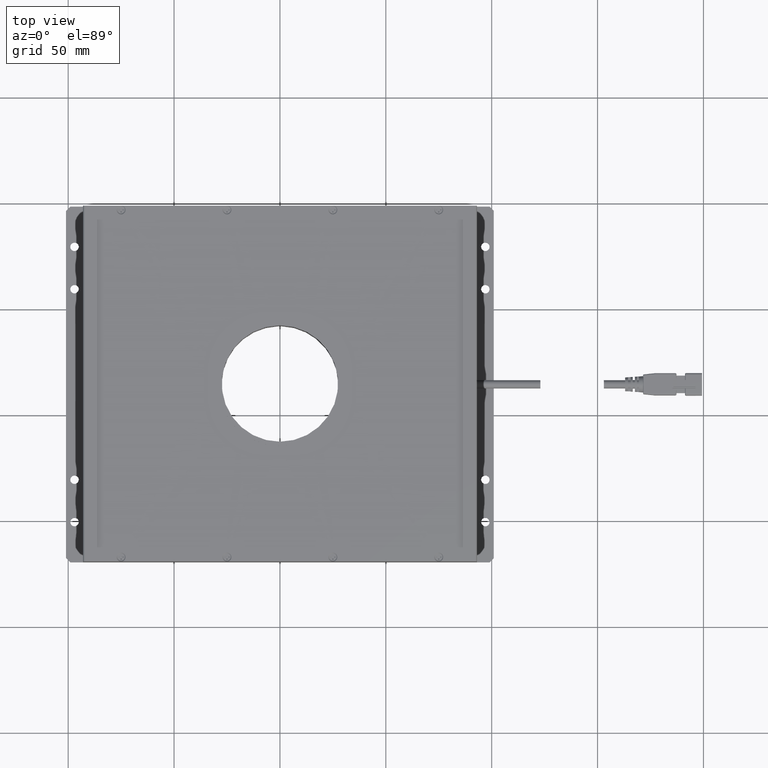
[diagram: clean part render]
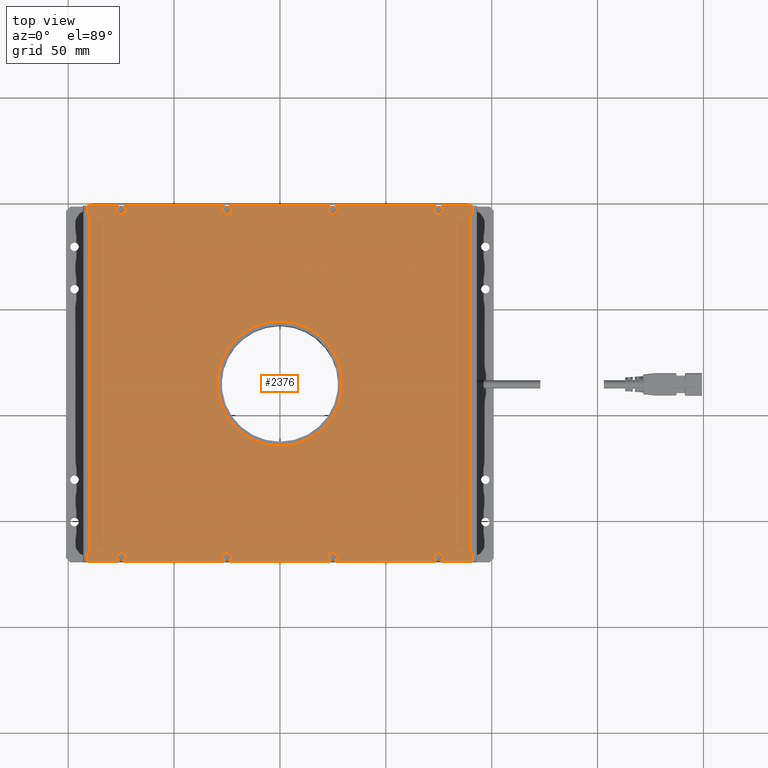
[diagram: same view with one face highlighted and labeled with its STEP entity id]
A machine part, top view. The second image highlights one B-rep face of the part: STEP entity #2376.
In plain terms, the highlighted planar face has unit normal (0, -0, 1).
Its self-contained STEP definition (entity closure, byte-faithful):
#2376=ADVANCED_FACE('NONE',(#5753,#5754),#5755,.T.);
#5753=FACE_BOUND('',#10055,.T.);
#5754=FACE_OUTER_BOUND('',#10056,.T.);
#5755=PLANE('',#10057);
#10055=EDGE_LOOP('',(#18229));
#10056=EDGE_LOOP('',(#18230,#18231,#18232,#18233,#18234,#18235,#18236,#18237,#18238,#18239,#18240,#18241,#18242,#18243,#18244,#18245,#18246,#18247,#18248,#18249));
#10057=AXIS2_PLACEMENT_3D('',#18250,#18251,#18252);
#18229=ORIENTED_EDGE('',*,*,#23698,.T.);
#18230=ORIENTED_EDGE('',*,*,#22360,.F.);
#18231=ORIENTED_EDGE('',*,*,#23916,.T.);
#18232=ORIENTED_EDGE('',*,*,#22358,.F.);
#18233=ORIENTED_EDGE('',*,*,#23917,.T.);
#18234=ORIENTED_EDGE('',*,*,#22356,.F.);
#18235=ORIENTED_EDGE('',*,*,#22362,.T.);
#18236=ORIENTED_EDGE('',*,*,#22354,.F.);
#18237=ORIENTED_EDGE('',*,*,#23875,.T.);
#18238=ORIENTED_EDGE('',*,*,#22352,.F.);
#18239=ORIENTED_EDGE('',*,*,#23807,.T.);
#18240=ORIENTED_EDGE('',*,*,#22145,.T.);
#18241=ORIENTED_EDGE('',*,*,#23918,.T.);
#18242=ORIENTED_EDGE('',*,*,#22143,.T.);
#18243=ORIENTED_EDGE('',*,*,#22420,.T.);
#18244=ORIENTED_EDGE('',*,*,#22141,.T.);
#18245=ORIENTED_EDGE('',*,*,#22147,.T.);
#18246=ORIENTED_EDGE('',*,*,#22139,.T.);
#18247=ORIENTED_EDGE('',*,*,#23877,.T.);
#18248=ORIENTED_EDGE('',*,*,#22137,.T.);
#18249=ORIENTED_EDGE('',*,*,#22268,.T.);
#18250=CARTESIAN_POINT('',(0.0,0.0146249999999999,0.014575));
#18251=DIRECTION('',(0.0,-3.49148336110938E-15,1.0));
#18252=DIRECTION('',(1.0,0.0,0.0));
#22137=EDGE_CURVE('NONE',#24658,#24656,#24659,.T.);
#22139=EDGE_CURVE('NONE',#24662,#24660,#24663,.T.);
#22141=EDGE_CURVE('NONE',#24666,#24664,#24667,.T.);
#22143=EDGE_CURVE('NONE',#24670,#24668,#24671,.T.);
#22145=EDGE_CURVE('NONE',#24652,#24672,#24674,.T.);
#22147=EDGE_CURVE('NONE',#24664,#24662,#24676,.T.);
#22268=EDGE_CURVE('5:3127',#24656,#24894,#24896,.T.);
#22352=EDGE_CURVE('NONE',#25032,#25034,#25035,.T.);
#22354=EDGE_CURVE('NONE',#25036,#25038,#25039,.T.);
#22356=EDGE_CURVE('NONE',#25040,#25042,#25043,.T.);
#22358=EDGE_CURVE('NONE',#25044,#25046,#25047,.T.);
#22360=EDGE_CURVE('NONE',#25048,#24894,#25050,.T.);
#22362=EDGE_CURVE('NONE',#25040,#25038,#25052,.T.);
#22420=EDGE_CURVE('NONE',#24668,#24666,#25154,.T.);
#23698=EDGE_CURVE('NONE',#27063,#27063,#27064,.T.);
#23807=EDGE_CURVE('5:3130',#25032,#24652,#27227,.T.);
#23875=EDGE_CURVE('NONE',#25036,#25034,#27303,.T.);
#23877=EDGE_CURVE('NONE',#24660,#24658,#27305,.T.);
#23916=EDGE_CURVE('NONE',#25048,#25046,#27349,.T.);
#23917=EDGE_CURVE('NONE',#25044,#25042,#27350,.T.);
#23918=EDGE_CURVE('NONE',#24672,#24670,#27351,.T.);
#24652=VERTEX_POINT('',#28318);
#24656=VERTEX_POINT('NONE',#28324);
#24658=VERTEX_POINT('NONE',#28327);
#24659=LINE('',#28328,#28329);
#24660=VERTEX_POINT('NONE',#28330);
#24662=VERTEX_POINT('NONE',#28337);
#24663=LINE('',#28338,#28339);
#24664=VERTEX_POINT('NONE',#28340);
#24666=VERTEX_POINT('NONE',#28347);
#24667=LINE('',#28348,#28349);
#24668=VERTEX_POINT('NONE',#28350);
#24670=VERTEX_POINT('NONE',#28357);
#24671=LINE('',#28358,#28359);
#24672=VERTEX_POINT('NONE',#28360);
#24674=LINE('',#28367,#28368);
#24676=CIRCLE('',#28370,0.00209999997049862);
#24894=VERTEX_POINT('',#28668);
#24896=LINE('',#28671,#28672);
#25032=VERTEX_POINT('NONE',#28890);
#25034=VERTEX_POINT('NONE',#28893);
#25035=LINE('',#28894,#28895);
#25036=VERTEX_POINT('NONE',#28896);
#25038=VERTEX_POINT('NONE',#28903);
#25039=LINE('',#28904,#28905);
#25040=VERTEX_POINT('NONE',#28906);
#25042=VERTEX_POINT('NONE',#28913);
#25043=LINE('',#28914,#28915);
#25044=VERTEX_POINT('NONE',#28916);
#25046=VERTEX_POINT('NONE',#28923);
#25047=LINE('',#28924,#28925);
#25048=VERTEX_POINT('NONE',#28926);
#25050=LINE('',#28933,#28934);
#25052=CIRCLE('',#28936,0.00209999997054272);
#25154=CIRCLE('',#29075,0.00209999999805816);
#27063=VERTEX_POINT('',#31775);
#27064=CIRCLE('',#31776,0.0295);
#27227=LINE('',#32005,#32006);
#27303=CIRCLE('',#32142,0.00209999997048621);
#27305=CIRCLE('',#32144,0.00209999997044211);
#27349=CIRCLE('',#32199,0.00209999999804542);
#27350=CIRCLE('',#32200,0.0020999999981591);
#27351=CIRCLE('',#32201,0.00209999999805816);
#28318=CARTESIAN_POINT('',(-0.091,-0.069375,0.0145749999999997));
#28324=CARTESIAN_POINT('',(0.091,-0.069375,0.0145749999999997));
#28327=CARTESIAN_POINT('',(0.0756403123268037,-0.069375,0.0145749999724905));
#28328=CARTESIAN_POINT('',(0.0,-0.069375,0.0145749999999997));
#28329=VECTOR('',#33197,1.0);
#28330=CARTESIAN_POINT('',(0.0743596876731963,-0.069375,0.0145749999724905));
#28337=CARTESIAN_POINT('',(0.0256403123269891,-0.069375,0.0145749999724336));
#28338=CARTESIAN_POINT('',(0.0,-0.069375,0.0145749999999997));
#28339=VECTOR('',#33198,1.0);
#28340=CARTESIAN_POINT('',(0.0243596876730109,-0.069375,0.0145749999724336));
#28347=CARTESIAN_POINT('',(-0.0243596875826253,-0.069375,0.0145750000000596));
#28348=CARTESIAN_POINT('',(0.0,-0.069375,0.0145749999999997));
#28349=VECTOR('',#33199,1.0);
#28350=CARTESIAN_POINT('',(-0.0256403124173747,-0.069375,0.0145750000000596));
#28357=CARTESIAN_POINT('',(-0.0743596875826253,-0.069375,0.0145750000000596));
#28358=CARTESIAN_POINT('',(0.0,-0.069375,0.0145749999999997));
#28359=VECTOR('',#33200,1.0);
#28360=CARTESIAN_POINT('',(-0.0756403124173747,-0.069375,0.0145750000000596));
#28367=CARTESIAN_POINT('',(0.0,-0.069375,0.0145749999999997));
#28368=VECTOR('',#33201,1.0);
#28370=AXIS2_PLACEMENT_3D('',#33202,#33203,#33204);
#28668=CARTESIAN_POINT('',(0.091,0.098615,0.0145750000000003));
#28671=CARTESIAN_POINT('',(0.091,0.0146249999999999,0.014575));
#28672=VECTOR('',#33394,1.0);
#28890=CARTESIAN_POINT('',(-0.091,0.098615,0.0145750000000003));
#28893=CARTESIAN_POINT('',(-0.0756707457611063,0.098615,0.0145749999724911));
#28894=CARTESIAN_POINT('',(0.101,0.098615,0.0145750000000003));
#28895=VECTOR('',#33486,1.0);
#28896=CARTESIAN_POINT('',(-0.0743292542388937,0.098615,0.0145749999724911));
#28903=CARTESIAN_POINT('',(-0.0256707457612832,0.098615,0.0145749999723774));
#28904=CARTESIAN_POINT('',(0.101,0.098615,0.0145750000000003));
#28905=VECTOR('',#33487,1.0);
#28906=CARTESIAN_POINT('',(-0.0243292542387168,0.098615,0.0145749999723774));
#28913=CARTESIAN_POINT('',(0.0243292541522542,0.098615,0.0145750000000601));
#28914=CARTESIAN_POINT('',(0.101,0.098615,0.0145750000000003));
#28915=VECTOR('',#33488,1.0);
#28916=CARTESIAN_POINT('',(0.0256707458477458,0.098615,0.0145750000000601));
#28923=CARTESIAN_POINT('',(0.0743292541526101,0.098615,0.0145750000000601));
#28924=CARTESIAN_POINT('',(0.101,0.098615,0.0145750000000003));
#28925=VECTOR('',#33489,1.0);
#28926=CARTESIAN_POINT('',(0.0756707458473899,0.098615,0.0145750000000601));
#28933=CARTESIAN_POINT('',(0.101,0.098615,0.0145750000000003));
#28934=VECTOR('',#33490,1.0);
#28936=AXIS2_PLACEMENT_3D('',#33491,#33492,#33493);
#29075=AXIS2_PLACEMENT_3D('',#33561,#33562,#33563);
#31775=CARTESIAN_POINT('',(0.0,0.044125,0.0145750000000001));
#31776=AXIS2_PLACEMENT_3D('',#34745,#34746,#34747);
#32005=CARTESIAN_POINT('',(-0.091,0.0146249999999999,0.014575));
#32006=VECTOR('',#34889,1.0);
#32142=AXIS2_PLACEMENT_3D('',#34930,#34931,#34932);
#32144=AXIS2_PLACEMENT_3D('',#34933,#34934,#34935);
#32199=AXIS2_PLACEMENT_3D('',#34968,#34969,#34970);
#32200=AXIS2_PLACEMENT_3D('',#34971,#34972,#34973);
#32201=AXIS2_PLACEMENT_3D('',#34974,#34975,#34976);
#33197=DIRECTION('',(1.0,0.0,0.0));
#33198=DIRECTION('',(1.0,0.0,0.0));
#33199=DIRECTION('',(1.0,0.0,0.0));
#33200=DIRECTION('',(1.0,0.0,0.0));
#33201=DIRECTION('',(1.0,0.0,0.0));
#33202=CARTESIAN_POINT('',(0.025,-0.067375,0.0145749999724337));
#33203=DIRECTION('',(0.0,3.49148336110938E-15,-1.0));
#33204=DIRECTION('',(1.65211761937779E-15,-1.0,-3.49148336110938E-15));
#33394=DIRECTION('',(0.0,1.0,3.49148336110938E-15));
#33486=DIRECTION('',(1.0,0.0,-0.0));
#33487=DIRECTION('',(1.0,0.0,-0.0));
#33488=DIRECTION('',(1.0,0.0,-0.0));
#33489=DIRECTION('',(1.0,0.0,-0.0));
#33490=DIRECTION('',(1.0,0.0,-0.0));
#33491=CARTESIAN_POINT('',(-0.025,0.096625,0.0145749999723774));
#33492=DIRECTION('',(-0.0,3.49148336110938E-15,-1.0));
#33493=DIRECTION('',(-1.0,-0.0,0.0));
#33561=CARTESIAN_POINT('',(-0.025,-0.067375,0.0145750000000596));
#33562=DIRECTION('',(0.0,3.49148336110938E-15,-1.0));
#33563=DIRECTION('',(1.65211759769608E-15,-1.0,-3.49148336110938E-15));
#34745=CARTESIAN_POINT('',(0.0,0.0146249999999999,0.014575));
#34746=DIRECTION('',(0.0,3.49148336110938E-15,-1.0));
#34747=DIRECTION('',(0.0,1.0,3.49148336110938E-15));
#34889=DIRECTION('',(0.0,-1.0,-3.49148336110938E-15));
#34930=CARTESIAN_POINT('',(-0.075,0.096625,0.0145749999724911));
#34931=DIRECTION('',(0.0,3.49148336110938E-15,-1.0));
#34932=DIRECTION('',(0.0,-1.0,-3.49148336110938E-15));
#34933=CARTESIAN_POINT('',(0.075,-0.067375,0.0145749999724905));
#34934=DIRECTION('',(0.0,3.49148336110938E-15,-1.0));
#34935=DIRECTION('',(0.0,-1.0,-3.49148336110938E-15));
#34968=CARTESIAN_POINT('',(0.075,0.096625,0.0145750000000601));
#34969=DIRECTION('',(-0.0,3.49148336110938E-15,-1.0));
#34970=DIRECTION('',(-1.0,-0.0,0.0));
#34971=CARTESIAN_POINT('',(0.025,0.096625,0.0145750000000601));
#34972=DIRECTION('',(-0.0,3.49148336110938E-15,-1.0));
#34973=DIRECTION('',(-1.0,-0.0,0.0));
#34974=CARTESIAN_POINT('',(-0.075,-0.067375,0.0145750000000596));
#34975=DIRECTION('',(0.0,3.49148336110938E-15,-1.0));
#34976=DIRECTION('',(0.0,-1.0,-3.49148336110938E-15));